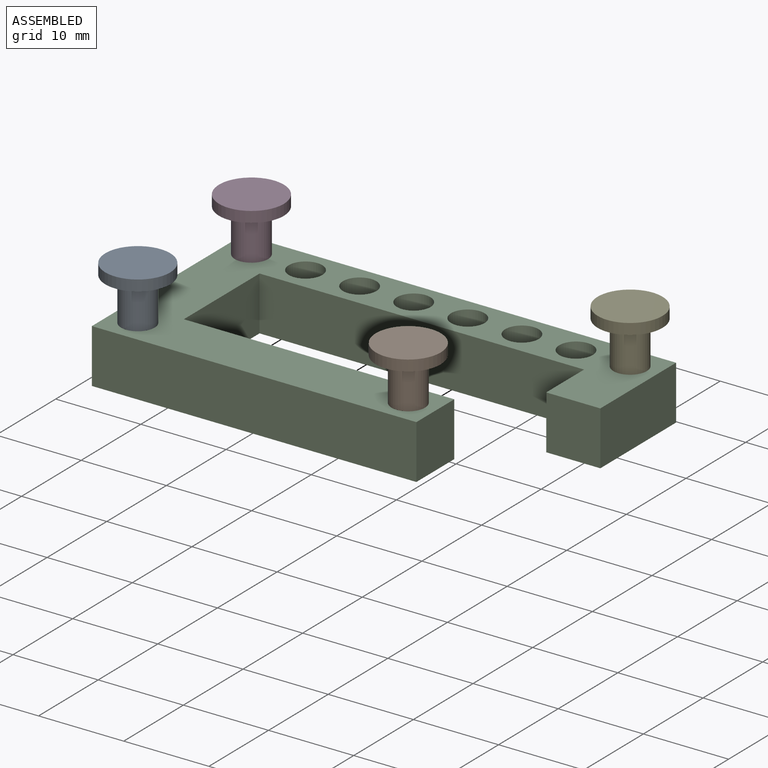
[diagram: assembled view]
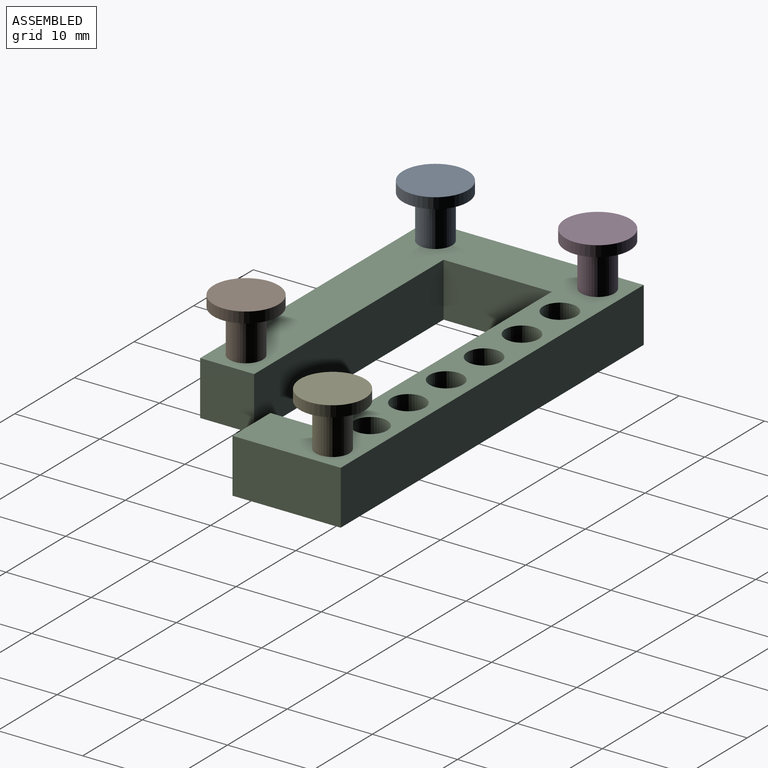
[diagram: assembled view, second angle]
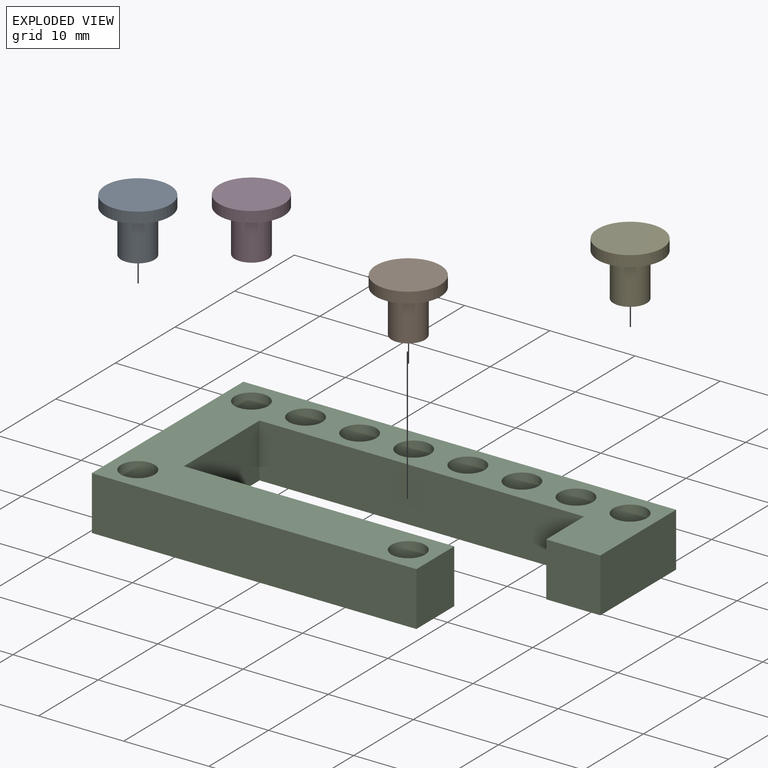
[diagram: exploded view]
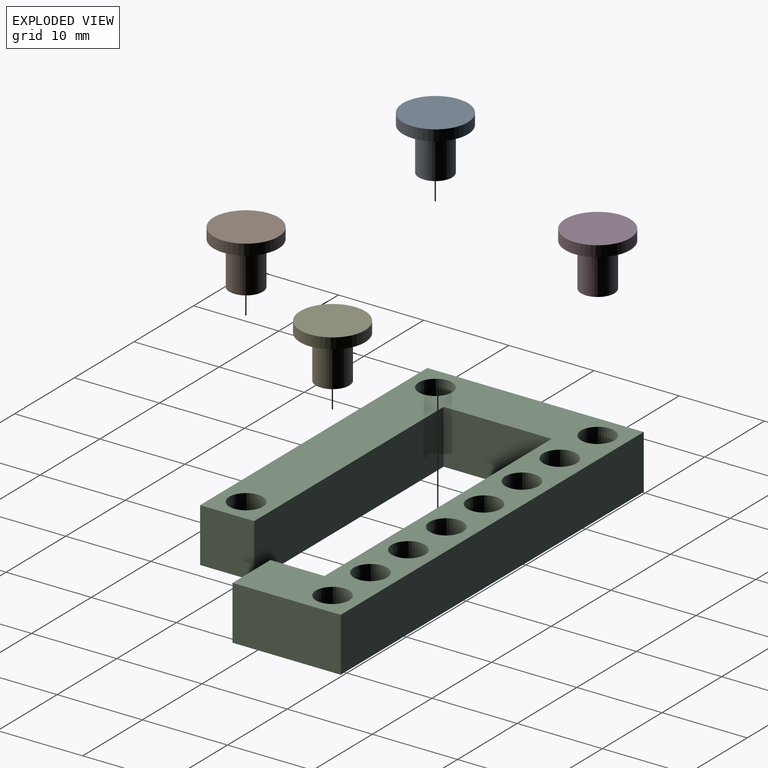
[diagram: exploded view, second angle]
ASSEMBLY  parts=5 mates=4
PART A: 5 faces, bbox 7.6x7.6x6.4 mm
  f0: cylinder r=1.96mm len=5.08mm, axis (0,0,-1), area 62.6mm2, adj f1,f4
  f1: plane 3.93x3.93mm, normal (0,0,-1), area 12.1mm2, adj f0
  f2: cylinder r=3.81mm len=7.62mm, axis (0,0,-1), area 30.4mm2, adj f3,f4
  f3: plane 7.62x7.62mm, normal (0,0,1), area 45.6mm2, adj f2
  f4: plane 7.62x7.62mm, normal (0,0,-1), area 33.5mm2, adj f0,f2
PART B: same geometry as A
PART C: 22 faces, bbox 50.8x25.4x6.4 mm
  f0: plane 6.35x6.35mm, normal (0,-1,0), area 40.3mm2, adj f1,f9,f10,f11
  f1: plane 12.7x6.35mm, normal (1,0,0), area 80.6mm2, adj f0,f2,f10,f11
  f2: plane 50.8x6.35mm, normal (0,1,0), area 322.6mm2, adj f1,f3,f10,f11
  f3: plane 25.4x6.35mm, normal (-1,0,0), area 161.3mm2, adj f2,f4,f10,f11
  f4: plane 38.1x6.35mm, normal (0,-1,0), area 241.9mm2, adj f3,f5,f10,f11
  f5: plane 6.35x6.35mm, normal (1,0,0), area 40.3mm2, adj f4,f6,f10,f11
  f6: plane 31.75x6.35mm, normal (0,1,0), area 201.6mm2, adj f5,f7,f10,f11
  f7: plane 12.7x6.35mm, normal (1,0,0), area 80.6mm2, adj f6,f8,f10,f11
  f8: plane 38.1x6.35mm, normal (0,-1,0), area 241.9mm2, adj f7,f9,f10,f11
  f9: plane 6.35x6.35mm, normal (-1,0,0), area 40.3mm2, adj f0,f8,f10,f11
  f10: plane 50.8x25.4mm, normal (0,0,1), area 564.3mm2, adj f0,f1,f2,f3,f4,f5,f6,f7
  f11: plane 50.8x25.4mm, normal (0,0,-1), area 564.3mm2, adj f0,f1,f2,f3,f4,f5,f6,f7
  f12: cylinder r=1.96mm len=6.35mm, axis (0,0,1), area 78.3mm2, adj f10,f11
  f13: cylinder r=1.96mm len=6.35mm, axis (0,0,1), area 78.3mm2, adj f10,f11
  f14: cylinder r=1.96mm len=6.35mm, axis (0,0,1), area 78.3mm2, adj f10,f11
  f15: cylinder r=1.96mm len=6.35mm, axis (0,0,1), area 78.3mm2, adj f10,f11
  f16: cylinder r=1.96mm len=6.35mm, axis (0,0,1), area 78.3mm2, adj f10,f11
  f17: cylinder r=1.96mm len=6.35mm, axis (0,0,1), area 78.3mm2, adj f10,f11
  f18: cylinder r=1.96mm len=6.35mm, axis (0,0,1), area 78.3mm2, adj f10,f11
  f19: cylinder r=1.96mm len=6.35mm, axis (0,0,1), area 78.3mm2, adj f10,f11
  f20: cylinder r=1.97mm len=6.35mm, axis (0,0,1), area 78.5mm2, adj f10,f11
  f21: cylinder r=1.97mm len=6.35mm, axis (0,0,1), area 78.5mm2, adj f10,f11
PART D: same geometry as A
PART E: same geometry as A
PLACE A t=(-32.21,-53.6,9.31)mm
PLACE B t=(-0.46,-53.6,9.31)mm
PLACE C t=(12.24,-34.55,9.31)mm
PLACE D t=(-32.21,-34.55,9.31)mm
PLACE E t=(12.24,-34.55,9.31)mm
MATE fastened C.f12 <-> E.f0  axis (0,0,1) through (9.06,-12.32,15.66)mm
MATE fastened C.f19 <-> D.f0  axis (0,0,1) through (-35.39,-12.32,15.66)mm
MATE fastened C.f21 <-> A.f0  axis (0,0,1) through (-35.39,-31.37,15.66)mm
MATE fastened C.f20 <-> B.f0  axis (0,0,1) through (-3.64,-31.37,15.66)mm
